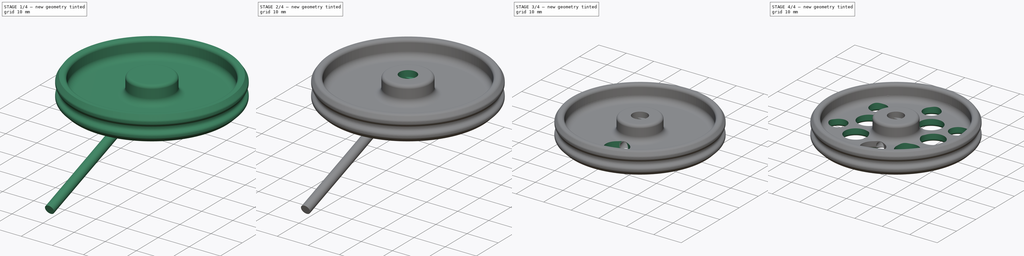
[diagram: build sequence overview — one tinted view per stage of 4, left to right]
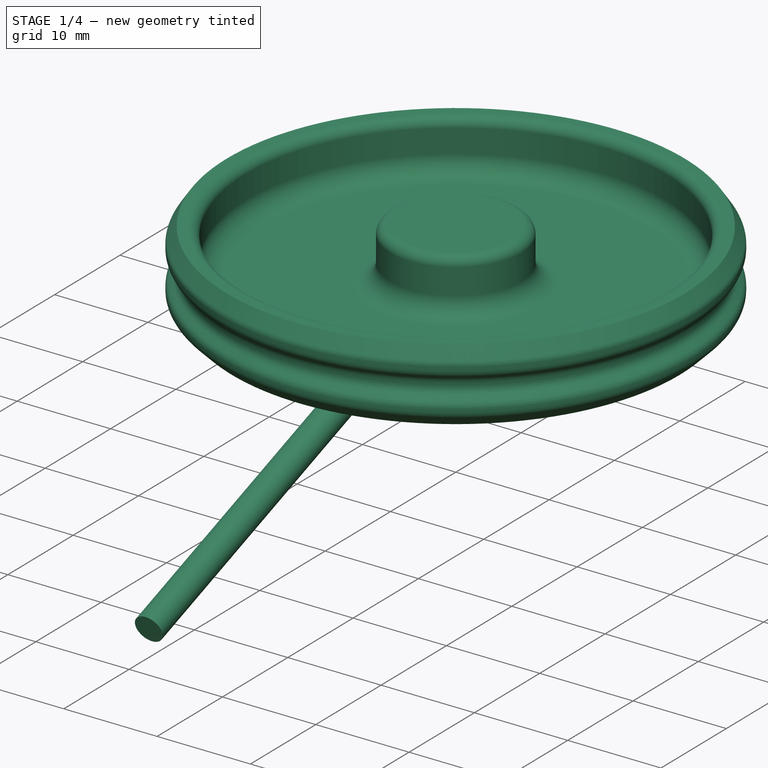
[diagram: stage 1 of 4 — iso view after this stage's code; geometry added in this stage tinted green]
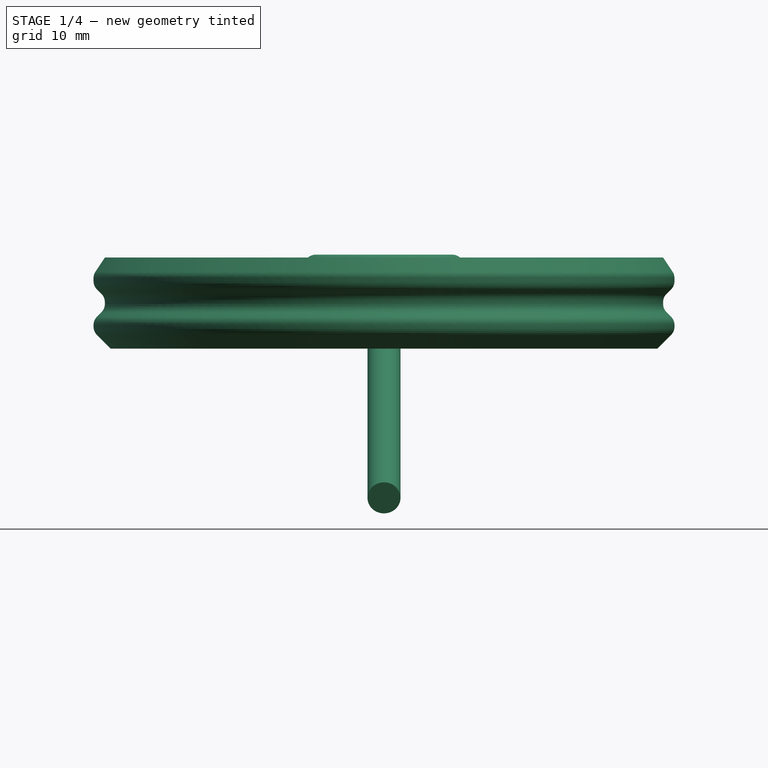
[diagram: stage 1 of 4 — front view after this stage's code; geometry added in this stage tinted green]
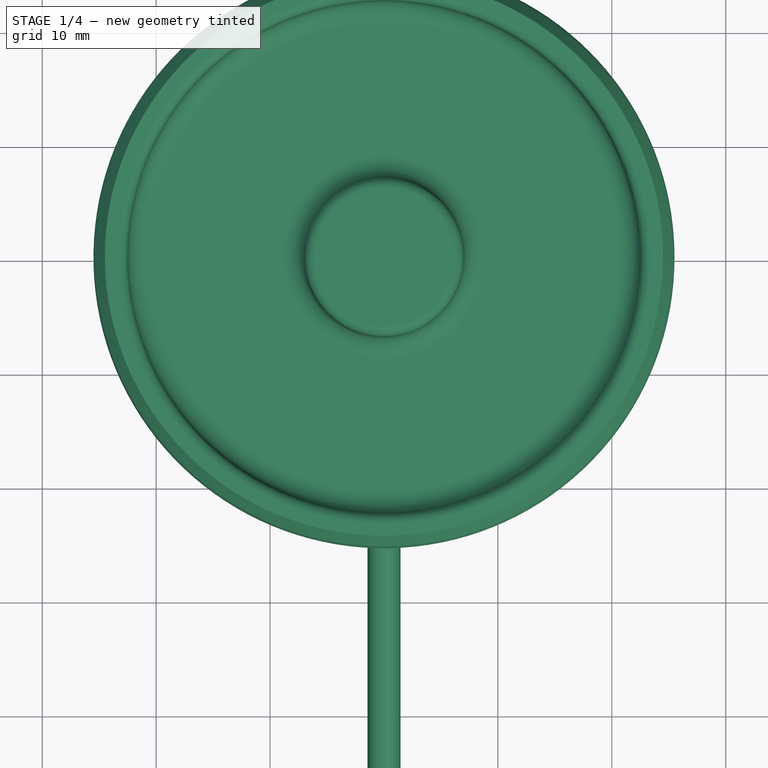
[diagram: stage 1 of 4 — top view after this stage's code; geometry added in this stage tinted green]
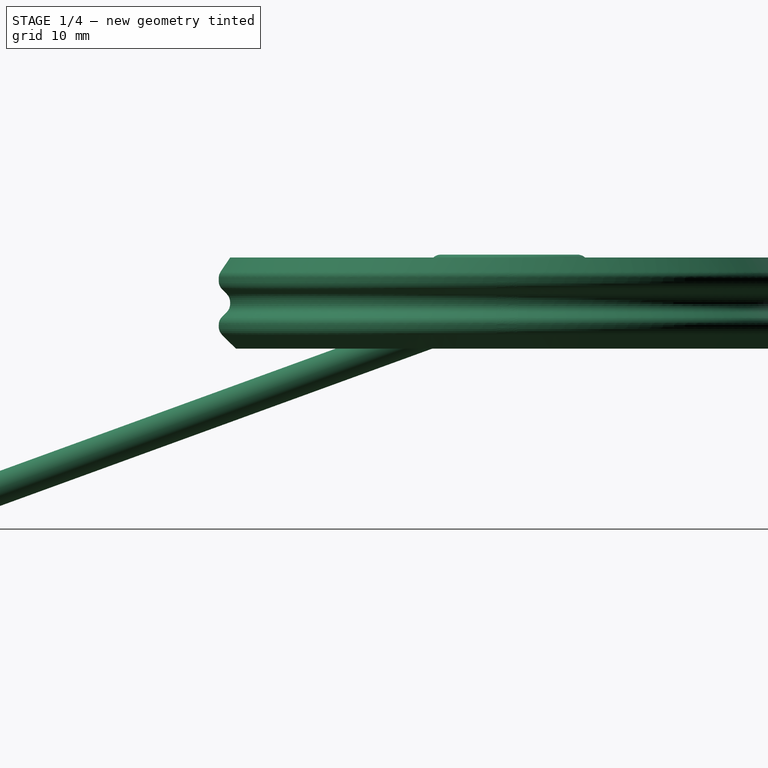
[diagram: stage 1 of 4 — right view after this stage's code; geometry added in this stage tinted green]
FCSTD DOCUMENT  (FreeCAD 0.16R6712 (Git))
Label: rueda_c
License: All rights reserved
LicenseURL: http://en.wikipedia.org/wiki/All_rights_reserved
objects: Sketcher::SketchObject×4, PartDesign::Pocket×3, PartDesign::Fillet×2, PartDesign::Revolution×1, Part::Cylinder×1, Part::Cut×1, PartDesign::PolarPattern×1, Part::Chamfer×1, Part::Fillet×1
note: 19 computed .brp shape members not serialized (recipe doc carries the construction recipe); baked Part::Feature solids carry a one-line shape summary decoded from their .brp

FEATURE [Sketcher::SketchObject] Sketch
  Placement = pos=(0,0,0) rot=(1,0,0;1.5708rad)
  sketch-geometry (18):
    g0: LineSegment StartX=0 StartY=0 StartZ=0 EndX=0 EndY=8.25 EndZ=0
    g1: LineSegment StartX=0 StartY=8.25 StartZ=0 EndX=6 EndY=8.25 EndZ=0
    g2: ArcOfCircle CenterX=6 CenterY=7.25 CenterZ=0 NormalX=0 NormalY=0 NormalZ=1 Radius=1 StartAngle=6.28319 EndAngle=7.85398
    g3: LineSegment StartX=7 StartY=7.25 StartZ=0 EndX=7 EndY=4.5 EndZ=0
    g4: ArcOfCircle CenterX=9 CenterY=4.5 CenterZ=0 NormalX=0 NormalY=0 NormalZ=1 Radius=2 StartAngle=3.14159 EndAngle=4.71239
    g5: LineSegment StartX=9 StartY=2.5 StartZ=0 EndX=20.5 EndY=2.5 EndZ=0
    g6: LineSegment StartX=0 StartY=0 StartZ=0 EndX=24 EndY=0 EndZ=0
    g7: LineSegment StartX=24 StartY=0 StartZ=0 EndX=25.5 EndY=1.5 EndZ=0
    g8: LineSegment StartX=25.5 StartY=1.5 StartZ=0 EndX=25.5 EndY=2.5 EndZ=0
    g9: LineSegment StartX=25.5 StartY=2.5 StartZ=0 EndX=24.5 EndY=3.5 EndZ=0
    g10: LineSegment StartX=24.5 StartY=3.5 StartZ=0 EndX=24.5 EndY=4.5 EndZ=0
    g11: LineSegment StartX=24.5 StartY=4.5 StartZ=0 EndX=25.5 EndY=5.5 EndZ=0
    g12: LineSegment StartX=25.5 StartY=5.5 StartZ=0 EndX=25.5 EndY=6.5 EndZ=0
    g13: LineSegment StartX=25.5 StartY=6.5 StartZ=0 EndX=24.5 EndY=8 EndZ=0
    g14: LineSegment StartX=24.5 StartY=8 StartZ=0 EndX=23.5 EndY=8 EndZ=0
    g15: ArcOfCircle CenterX=23.5 CenterY=7 CenterZ=0 NormalX=0 NormalY=0 NormalZ=1 Radius=1 StartAngle=1.5708 EndAngle=3.14159
    g16: ArcOfCircle CenterX=20.5 CenterY=4.5 CenterZ=0 NormalX=0 NormalY=0 NormalZ=1 Radius=2 StartAngle=4.71239 EndAngle=6.28319
    g17: LineSegment StartX=22.5 StartY=4.5 StartZ=0 EndX=22.5 EndY=7 EndZ=0
  constraints (57):
    c: Coincident(g0,g-1)
    c: Vertical(g0)
    c: DistanceY(g0,g0) = 8.25
    c: Horizontal(g1)
    c: Coincident(g2,g1)
    c: Coincident(g3,g2)
    c: Vertical(g3)
    c: Coincident(g4,g3)
    c: Radius(g2) = 1
    c: Tangent(g1,g2)
    c: Tangent(g3,g2)
    c: DistanceX(g1,g2) = 7
    c: Coincident(g0,g1)
    c: Tangent(g4,g3)
    c: Radius(g4) = 2
    c: Coincident(g5,g4)
    c: Horizontal(g5)
    c: Tangent(g4,g5)
    c: DistanceY(g-1,g4) = 2.5
    c: Coincident(g6,g-1)
    c: Horizontal(g6)
    c: DistanceX(g6,g6) = 24
    c: Coincident(g7,g6)
    c: Angle(g7,g6) = 2.35619
    c: DistanceX(g6,g7) = 1.5
    c: Coincident(g8,g7)
    c: Vertical(g8)
    c: Coincident(g9,g8)
    c: Coincident(g10,g9)
    c: Vertical(g10)
    c: Coincident(g11,g10)
    c: Coincident(g12,g11)
    c: Vertical(g12)
    c: Coincident(g13,g12)
    c: Coincident(g14,g13)
    c: Horizontal(g14)
    c: Coincident(g15,g14)
    c: Coincident(g16,g5)
    c: Coincident(g17,g16)
    c: Coincident(g17,g15)
    c: Vertical(g17)
    c: Radius(g16) = 2
    c: Radius(g15) = 1
    c: Tangent(g16,g17)
    c: Tangent(g16,g5)
    c: Tangent(g17,g15)
    c: Tangent(g15,g14)
    c: DistanceX(g14,g14) = 1
    c: DistanceX(g13,g12) = 1
    c: DistanceY(g10,g10) = 1
    c: Angle(g9,g8) = 2.35619
    c: Angle(g10,g11) = 2.35619
    c: Equal(g9,g11)
    c: DistanceY(g6,g13) = 8
    c: Equal(g12,g8)
    c: DistanceX(g9,g8) = 1
    c: DistanceY(g6,g9) = 3.5
FEATURE [PartDesign::Revolution] Revolution
  Angle = 360
  Axis = (0,0,1)
  Base = (0,0,0)
  Placement = pos=(0,0,0) rot=(1,0,0;1.5708rad)
  ReferenceAxis = -> Sketch [V_Axis]
  Reversed = true
  Sketch = -> Sketch
FEATURE [PartDesign::Fillet] Fillet
  Base = -> Revolution [Edge26,Edge24,Edge22,Edge20,Edge18,Edge16]
  Placement = pos=(0,0,0) rot=(1,0,0;1.5708rad)
  Radius = 1
FEATURE [Part::Cylinder] Cylinder  label="Cilindro"
  Angle = 360
  Height = 50
  Placement = pos=(0,0,4) rot=(1,0,0;1.91986rad)
  Radius = 1.45
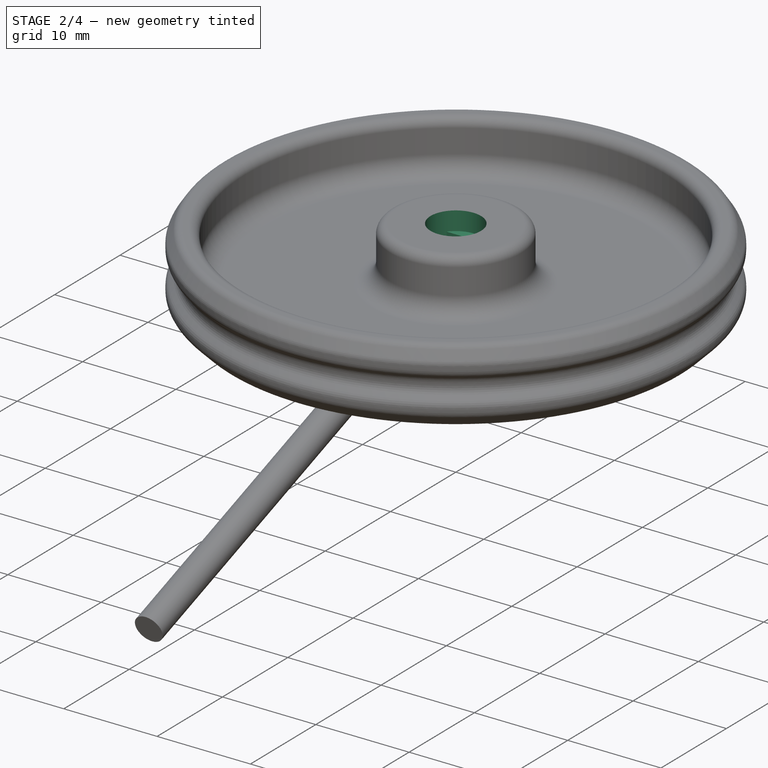
[diagram: stage 2 of 4 — iso view after this stage's code; geometry added in this stage tinted green]
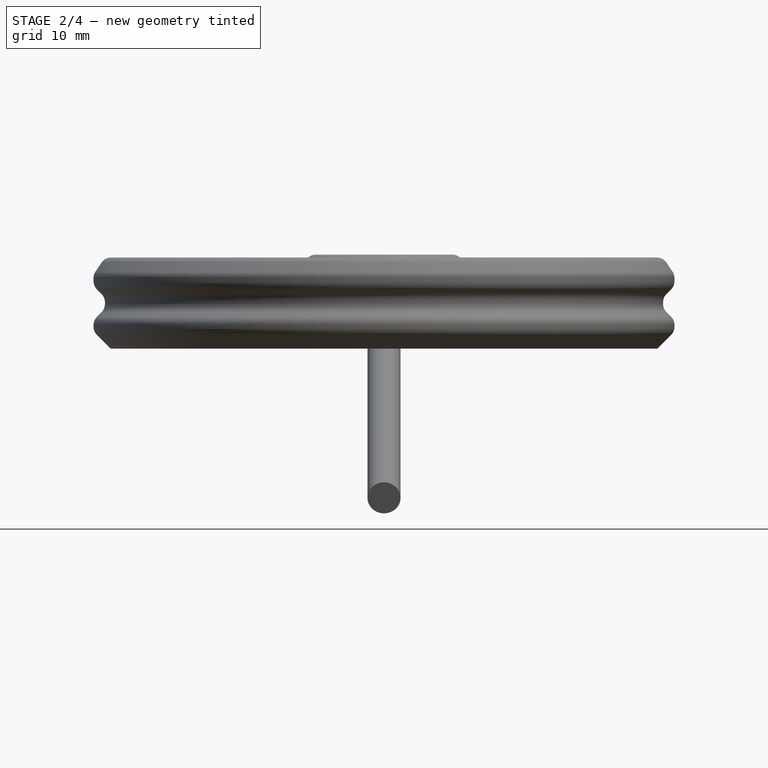
[diagram: stage 2 of 4 — front view after this stage's code; geometry added in this stage tinted green]
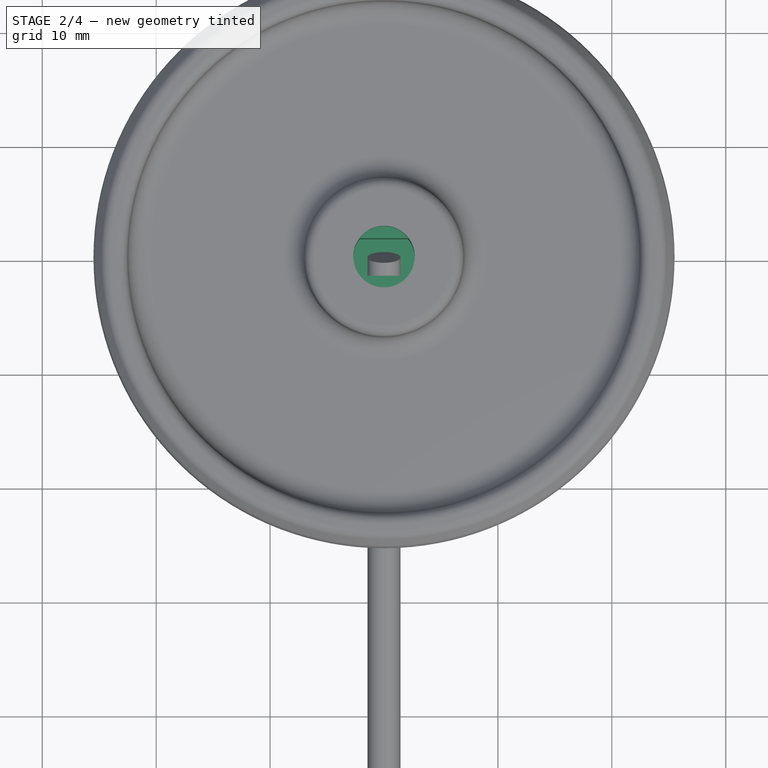
[diagram: stage 2 of 4 — top view after this stage's code; geometry added in this stage tinted green]
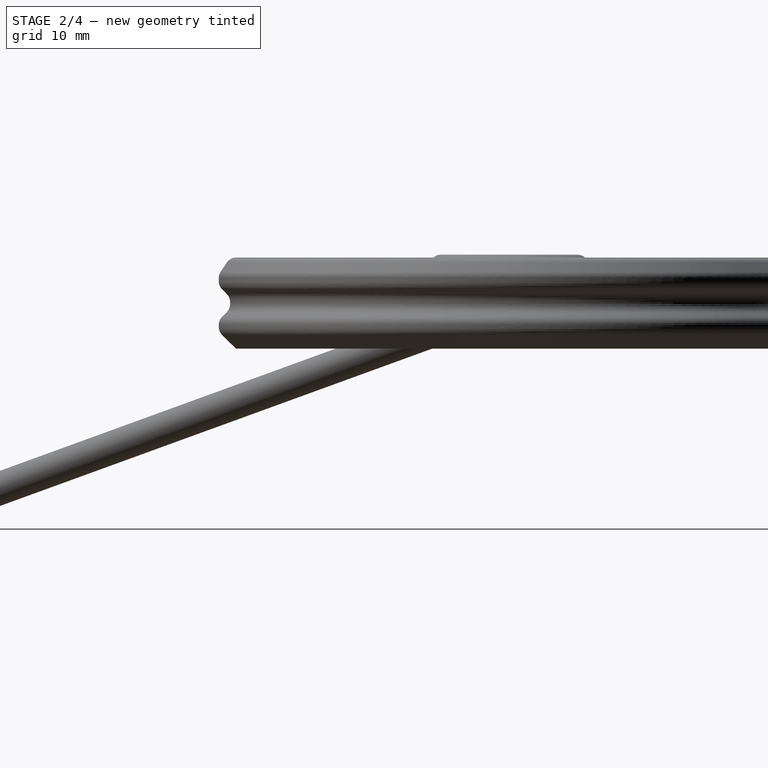
[diagram: stage 2 of 4 — right view after this stage's code; geometry added in this stage tinted green]
FEATURE [PartDesign::Fillet] Fillet001
  Base = -> Fillet [Edge3]
  Placement = pos=(0,0,0) rot=(1,0,0;1.5708rad)
  Radius = 1
FEATURE [Sketcher::SketchObject] Sketch001
  Placement = pos=(0,0,8.25) rot=(0,0,1;3.14159rad)
  Support = -> Fillet001 [Face20]
  sketch-geometry (4):
    g0: ArcOfCircle CenterX=0 CenterY=0 CenterZ=0 NormalX=0 NormalY=0 NormalZ=1 Radius=2.7 StartAngle=2.48413 EndAngle=3.79906
    g1: ArcOfCircle CenterX=0 CenterY=0 CenterZ=0 NormalX=0 NormalY=0 NormalZ=1 Radius=2.7 StartAngle=5.62572 EndAngle=6.94065
    g2: LineSegment StartX=-2.13717 StartY=-1.65 StartZ=0 EndX=2.13717 EndY=-1.65 EndZ=0
    g3: LineSegment StartX=-2.13717 StartY=1.65 StartZ=0 EndX=2.13717 EndY=1.65 EndZ=0
  constraints (12):
    c: Horizontal(g2)
    c: Equal(g0,g1)
    c: Coincident(g0,g3)
    c: Coincident(g0,g2)
    c: Coincident(g1,g3)
    c: Coincident(g1,g2)
    c: Coincident(g1,g0)
    c: Coincident(g1,g-1)
    c: Symmetric(g0,g1,g-1)
    c: Horizontal(g3)
    c: Radius(g0) = 2.7
    c: DistanceY(g-1,g1) = 1.65
FEATURE [PartDesign::Pocket] Pocket
  Length = 8
  Placement = pos=(0,0,0) rot=(1,0,0;1.5708rad)
  Sketch = -> Sketch001
  Type = 0
FEATURE [Sketcher::SketchObject] Sketch002
  ExternalGeometry = -> [Pocket]
  Placement = pos=(0,0,8.25) rot=(0,0,1;3.14159rad)
  Support = -> Pocket [Face20]
  sketch-geometry (1):
    g0: Circle CenterX=0 CenterY=0 CenterZ=0 NormalX=0 NormalY=0 NormalZ=1 Radius=2.7
  constraints (2):
    c: Coincident(g0,g-1)
    c: PointOnObject(g-3,g0)
FEATURE [PartDesign::Pocket] Pocket001
  Length = 2
  Placement = pos=(0,0,0) rot=(1,0,0;1.5708rad)
  Sketch = -> Sketch002
  Type = 0
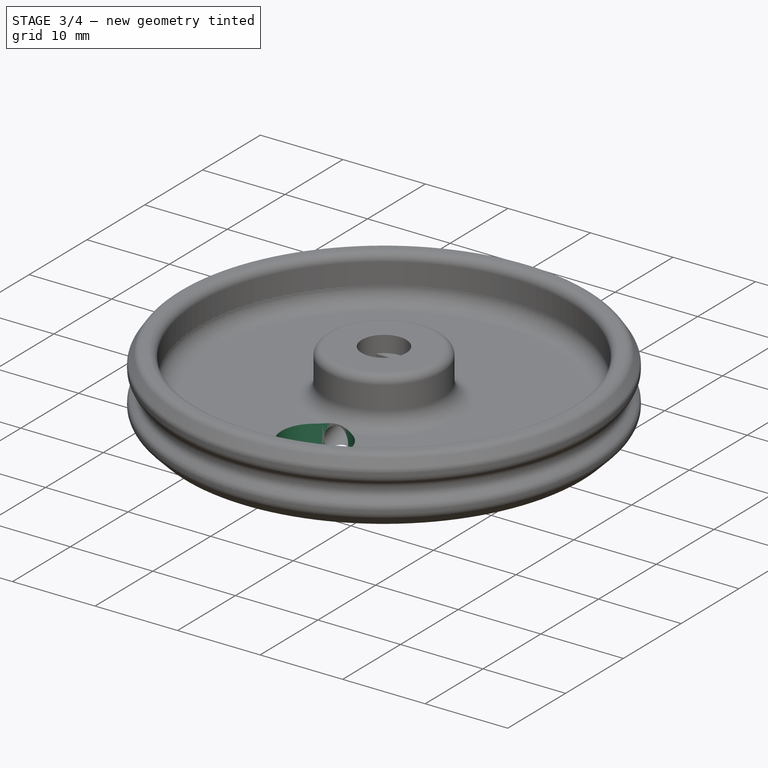
[diagram: stage 3 of 4 — iso view after this stage's code; geometry added in this stage tinted green]
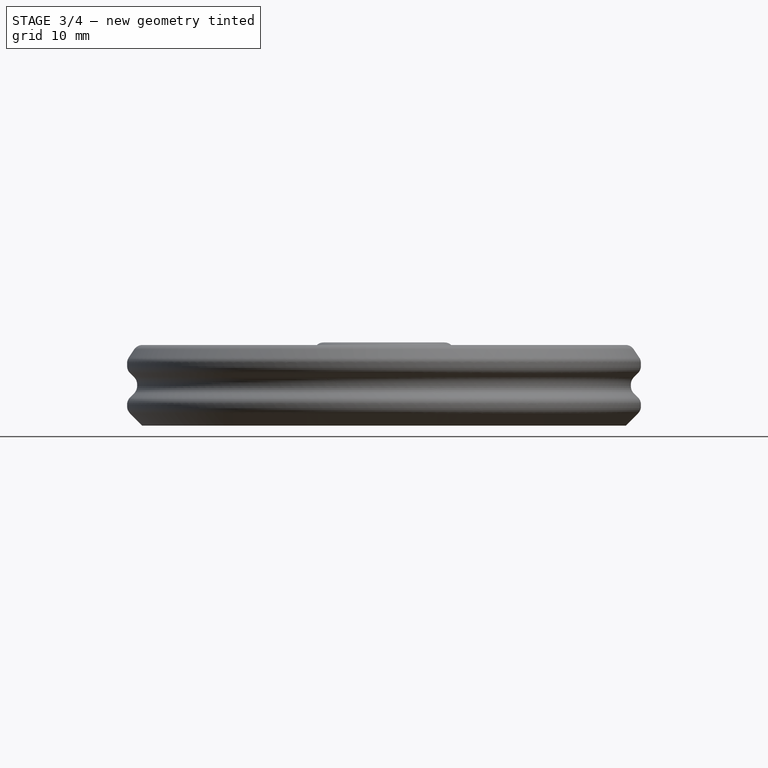
[diagram: stage 3 of 4 — front view after this stage's code; geometry added in this stage tinted green]
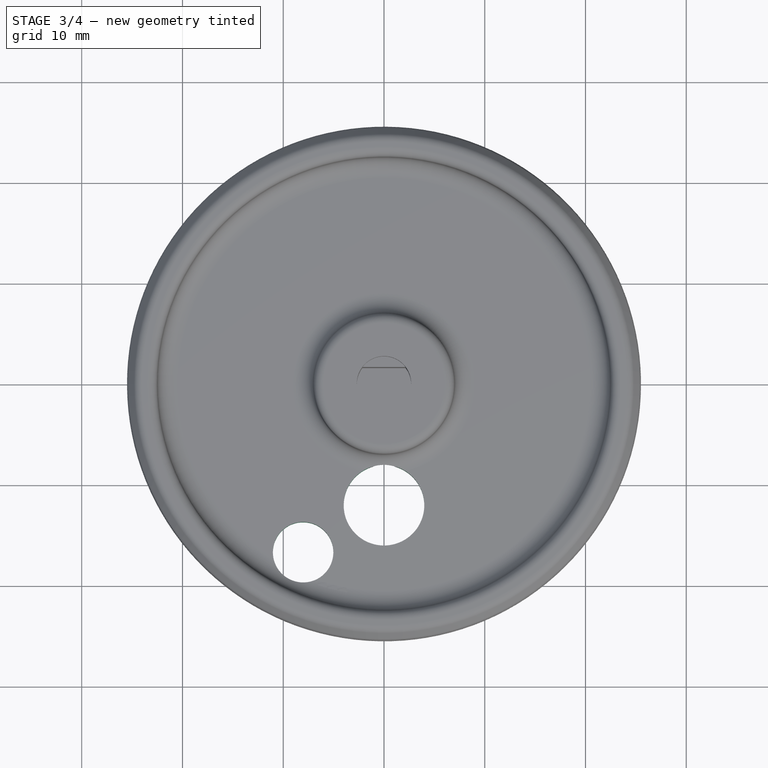
[diagram: stage 3 of 4 — top view after this stage's code; geometry added in this stage tinted green]
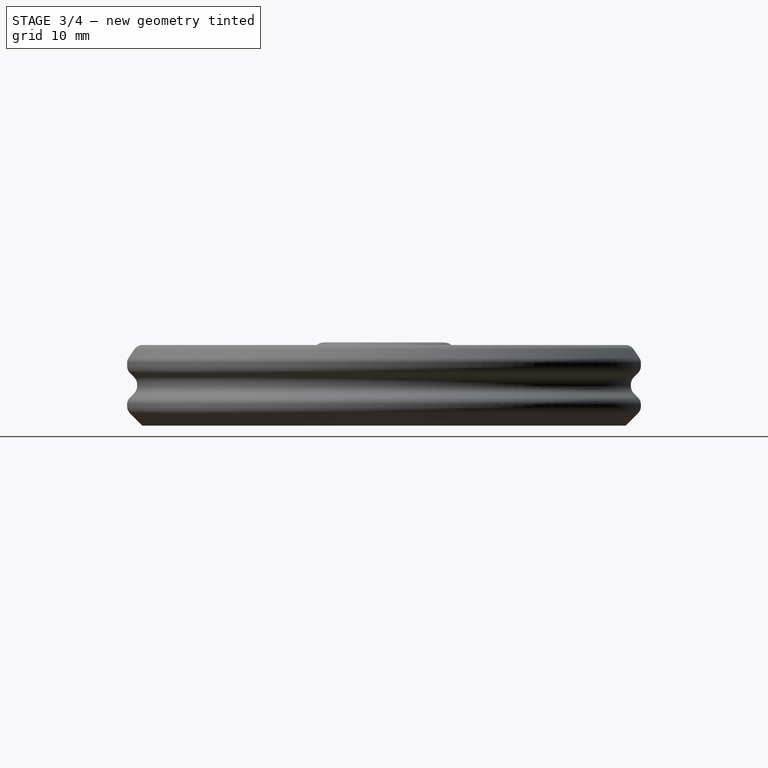
[diagram: stage 3 of 4 — right view after this stage's code; geometry added in this stage tinted green]
FEATURE [Part::Cut] Cut
  Base = -> Pocket001
  Tool = -> Cylinder
FEATURE [Sketcher::SketchObject] Sketch003
  Placement = pos=(0,0,2.5) rot=(0,0,1;0rad)
  Support = -> Cut [Face12]
  sketch-geometry (5):
    g0: LineSegment [constr] StartX=0 StartY=0 StartZ=0 EndX=-14.4472 EndY=-30 EndZ=0
    g1: LineSegment [constr] StartX=-14.4472 StartY=-30 StartZ=0 EndX=14.4472 EndY=-30 EndZ=0
    g2: LineSegment [constr] StartX=14.4472 StartY=-30 StartZ=0 EndX=0 EndY=0 EndZ=0
    g3: Circle CenterX=0 CenterY=-12 CenterZ=0 NormalX=0 NormalY=0 NormalZ=1 Radius=4
    g4: Circle CenterX=-8.02685 CenterY=-16.6679 CenterZ=0 NormalX=0 NormalY=0 NormalZ=1 Radius=3
  constraints (14):
    c: Coincident(g-1,g0)
    c: Coincident(g0,g1)
    c: Horizontal(g1)
    c: Coincident(g1,g2)
    c: Coincident(g2,g0)
    c: Symmetric(g0,g1,g-2)
    c: DistanceY(g0,g-1) = 30
    c: Angle(g0,g2) = 0.897598
    c: PointOnObject(g3,g-2)
    c: DistanceY(g3,g-1) = 12
    c: Radius(g3) = 4
    c: PointOnObject(g4,g0)
    c: Radius(g4) = 3
    c: Distance(g-1,g4) = 18.5
FEATURE [PartDesign::Pocket] Pocket002
  Length = 5
  Midplane = true
  Sketch = -> Sketch003
  Type = 1
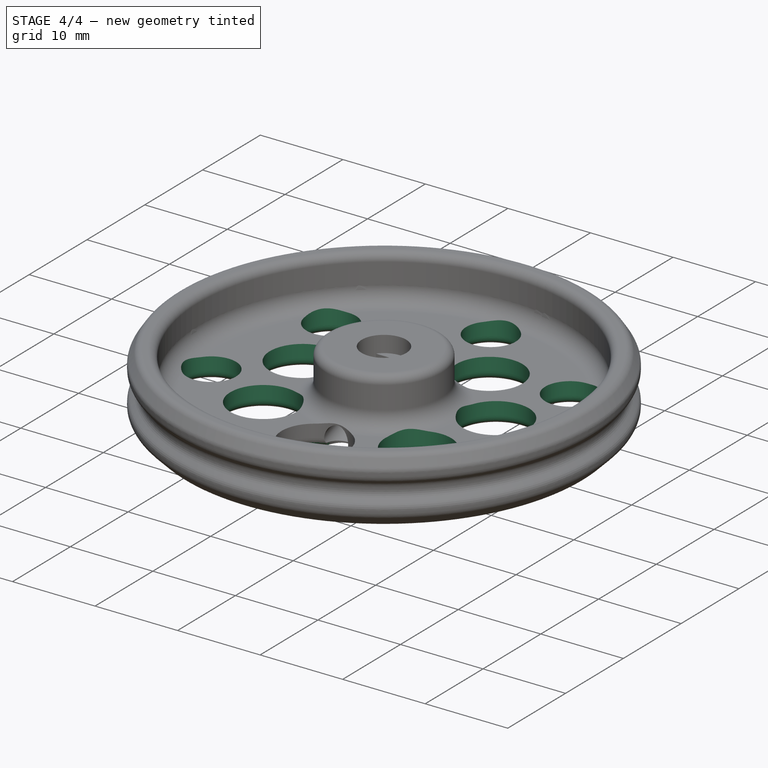
[diagram: stage 4 of 4 — iso view after this stage's code; geometry added in this stage tinted green]
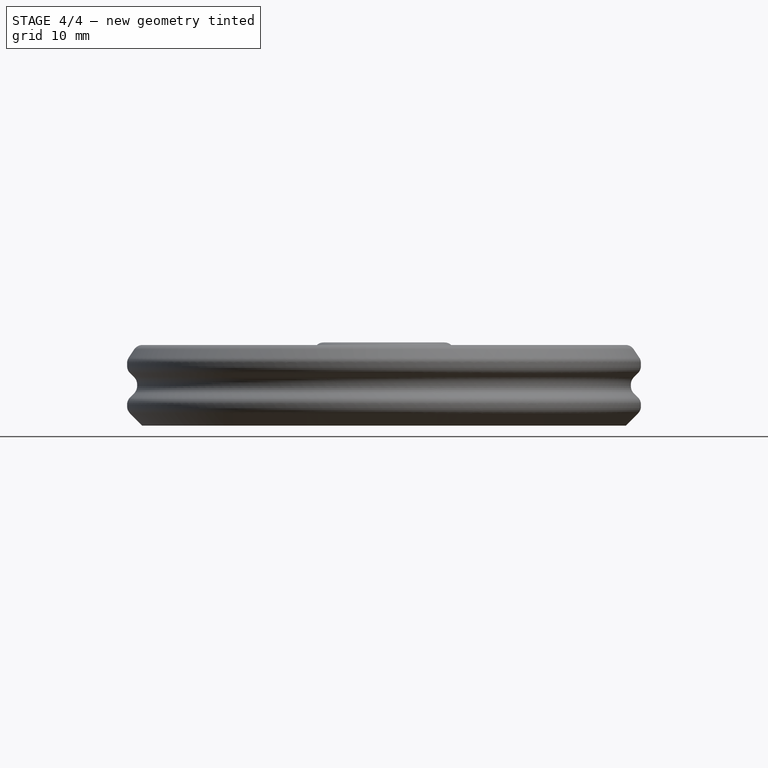
[diagram: stage 4 of 4 — front view after this stage's code; geometry added in this stage tinted green]
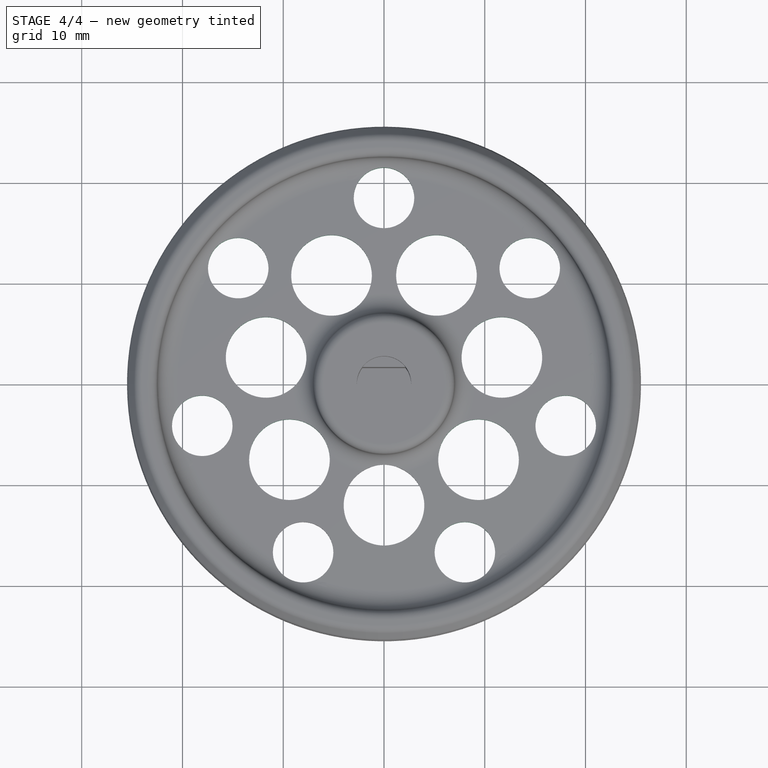
[diagram: stage 4 of 4 — top view after this stage's code; geometry added in this stage tinted green]
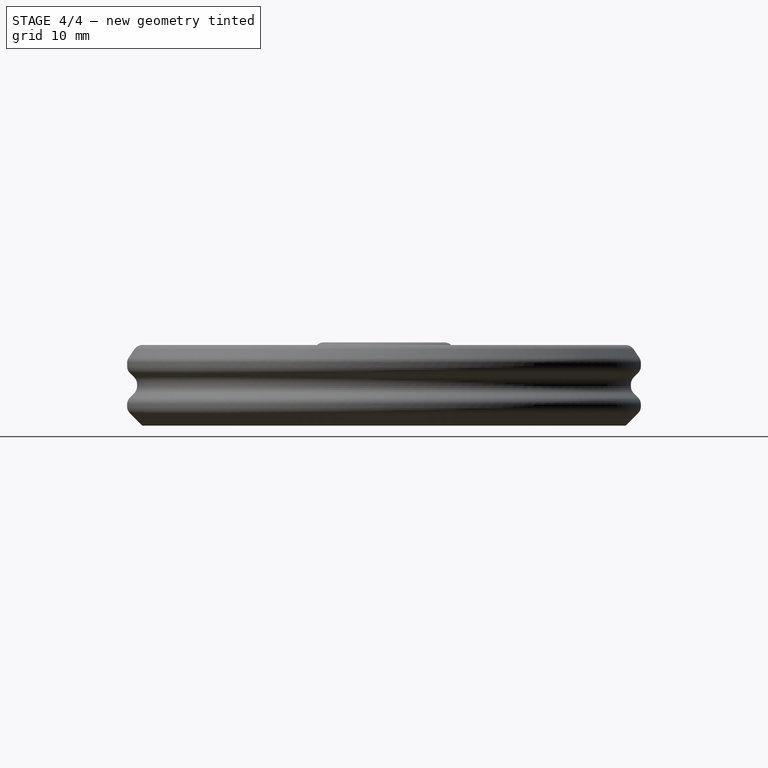
[diagram: stage 4 of 4 — right view after this stage's code; geometry added in this stage tinted green]
FEATURE [PartDesign::PolarPattern] PolarPattern
  Angle = 360
  Axis = -> Sketch003 [N_Axis]
  Occurrences = 7
  Originals = -> [Pocket002]
FEATURE [Part::Chamfer] Chamfer
  Base = -> PolarPattern
  Edges = 16 edges r=0.5: [Edge21,Edge29,Edge30,Edge31,Edge32,Edge33,Edge34,Edge35,Edge36,Edge37,Edge38,Edge39,Edge40,Edge41,Edge42,Edge43]
FEATURE [Part::Fillet] Fillet002
  Base = -> Chamfer
  Edges = 14 edges r=1: [Edge10,Edge112,Edge114,Edge116,Edge118,Edge120,Edge122,Edge124,Edge126,Edge128,Edge130,Edge132,Edge134,Edge136]
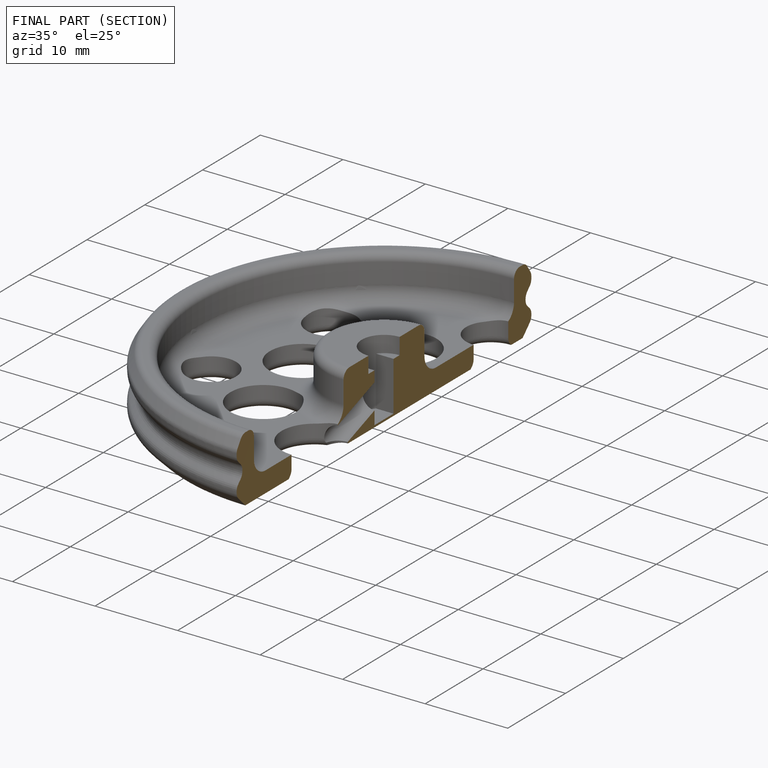
[diagram: finished part — half-section view (interior)]
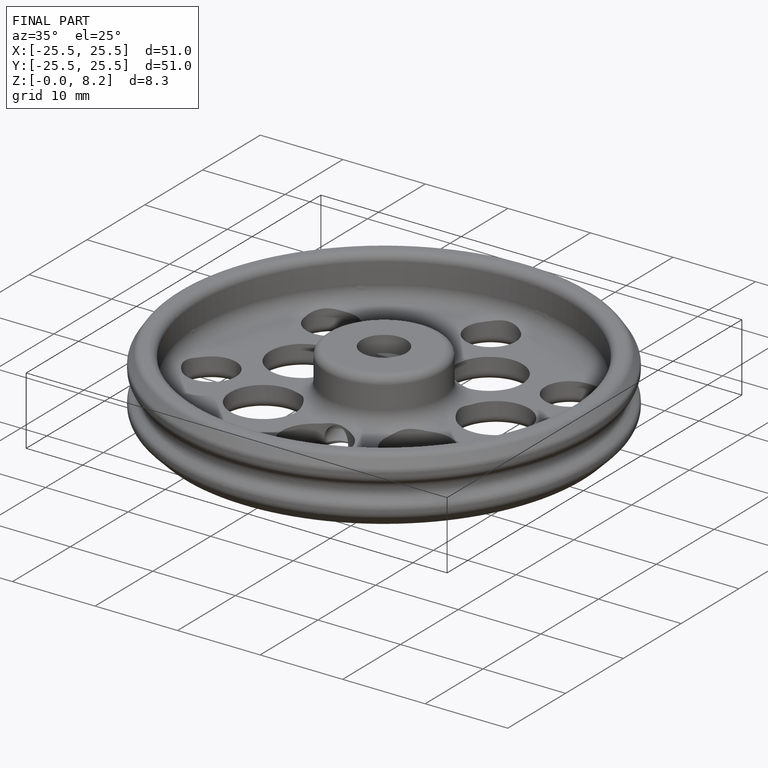
[diagram: finished part — iso view with bounding-box wireframe]
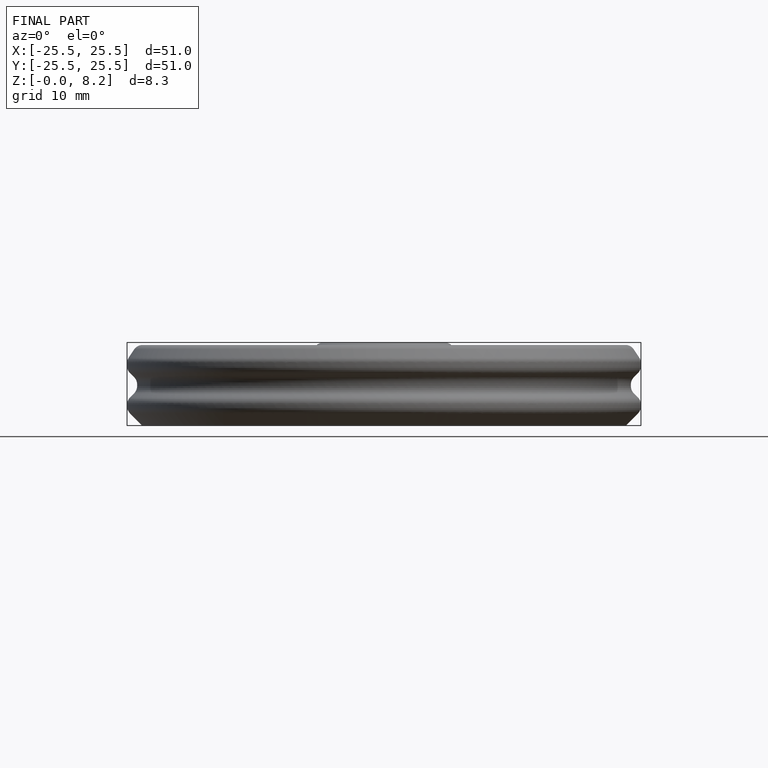
[diagram: finished part — front view with bounding-box wireframe]
